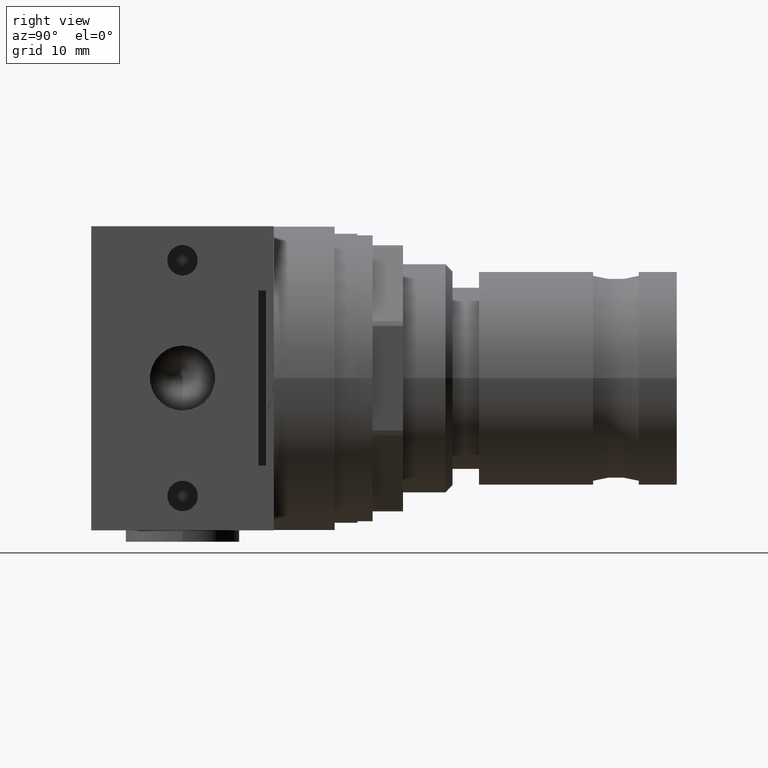
[diagram: clean part render]
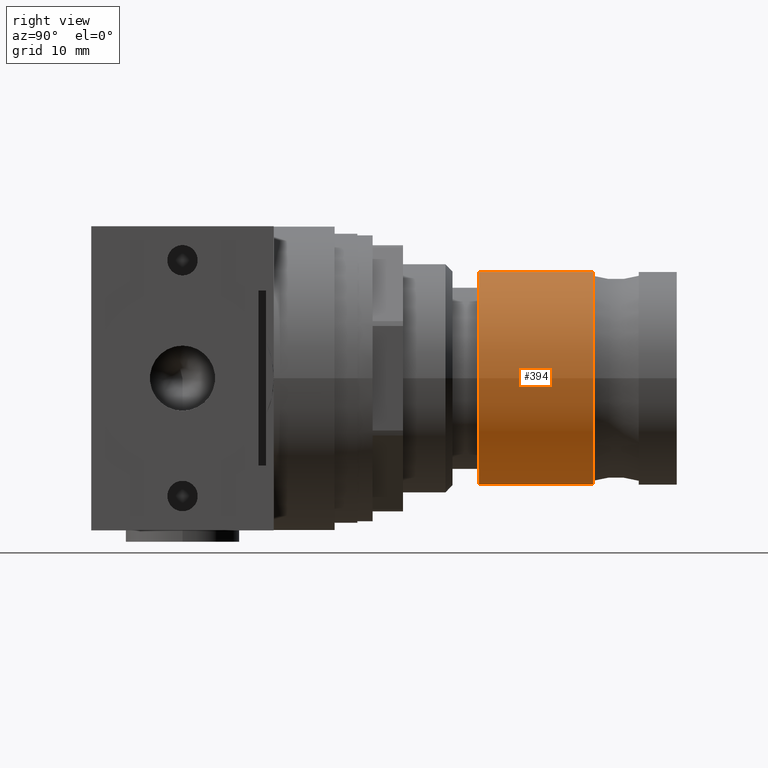
[diagram: same view with one face highlighted and labeled with its STEP entity id]
A machine part, right view. The second image highlights one B-rep face of the part: STEP entity #394.
In plain terms, the highlighted cylindrical surface (bore or boss wall) has radius 14 mm, axis along (-0, -1, 0).
Its self-contained STEP definition (entity closure, byte-faithful):
#394 = ADVANCED_FACE( '', ( #812, #813 ), #814, .T. );
#812 = FACE_OUTER_BOUND( '', #1257, .T. );
#813 = FACE_OUTER_BOUND( '', #1258, .T. );
#814 = CYLINDRICAL_SURFACE( '', #1259, 14.0000000000000 );
#1257 = EDGE_LOOP( '', ( #2099 ) );
#1258 = EDGE_LOOP( '', ( #2100 ) );
#1259 = AXIS2_PLACEMENT_3D( '', #2101, #2102, #2103 );
#2099 = ORIENTED_EDGE( '', *, *, #2749, .F. );
#2100 = ORIENTED_EDGE( '', *, *, #2597, .T. );
#2101 = CARTESIAN_POINT( '', ( 44.3291561975889, 0.000000000000000, 0.000000000000000 ) );
#2102 = DIRECTION( '', ( -1.00000000000000, -0.000000000000000, 0.000000000000000 ) );
#2103 = DIRECTION( '', ( -0.000000000000000, 0.000000000000000, -1.00000000000000 ) );
#2597 = EDGE_CURVE( '', #3101, #3101, #3102, .T. );
#2749 = EDGE_CURVE( '', #3315, #3315, #3316, .T. );
#3101 = VERTEX_POINT( '', #3773 );
#3102 = CIRCLE( '', #3774, 14.0000000000000 );
#3315 = VERTEX_POINT( '', #4051 );
#3316 = CIRCLE( '', #4052, 14.0000000000000 );
#3773 = CARTESIAN_POINT( '', ( 19.0000000000000, 0.000000000000000, -14.0000000000000 ) );
#3774 = AXIS2_PLACEMENT_3D( '', #4342, #4343, #4344 );
#4051 = CARTESIAN_POINT( '', ( 34.0000000000000, 0.000000000000000, -14.0000000000000 ) );
#4052 = AXIS2_PLACEMENT_3D( '', #4517, #4518, #4519 );
#4342 = CARTESIAN_POINT( '', ( 19.0000000000000, 0.000000000000000, 0.000000000000000 ) );
#4343 = DIRECTION( '', ( 1.00000000000000, 0.000000000000000, -0.000000000000000 ) );
#4344 = DIRECTION( '', ( -0.000000000000000, 0.000000000000000, -1.00000000000000 ) );
#4517 = CARTESIAN_POINT( '', ( 34.0000000000000, 0.000000000000000, 0.000000000000000 ) );
#4518 = DIRECTION( '', ( 1.00000000000000, 0.000000000000000, -0.000000000000000 ) );
#4519 = DIRECTION( '', ( -0.000000000000000, 0.000000000000000, -1.00000000000000 ) );